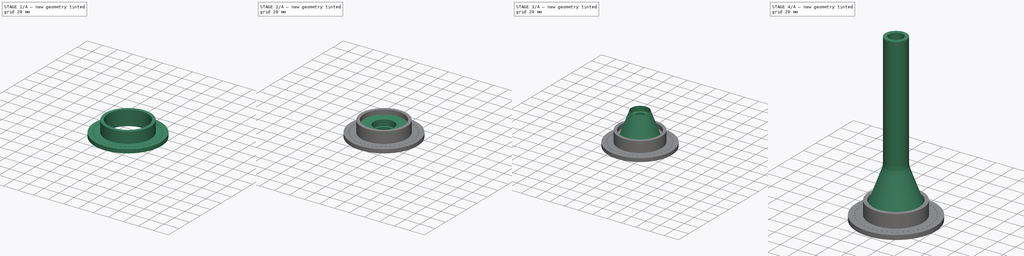
[diagram: build sequence overview — one tinted view per stage of 4, left to right]
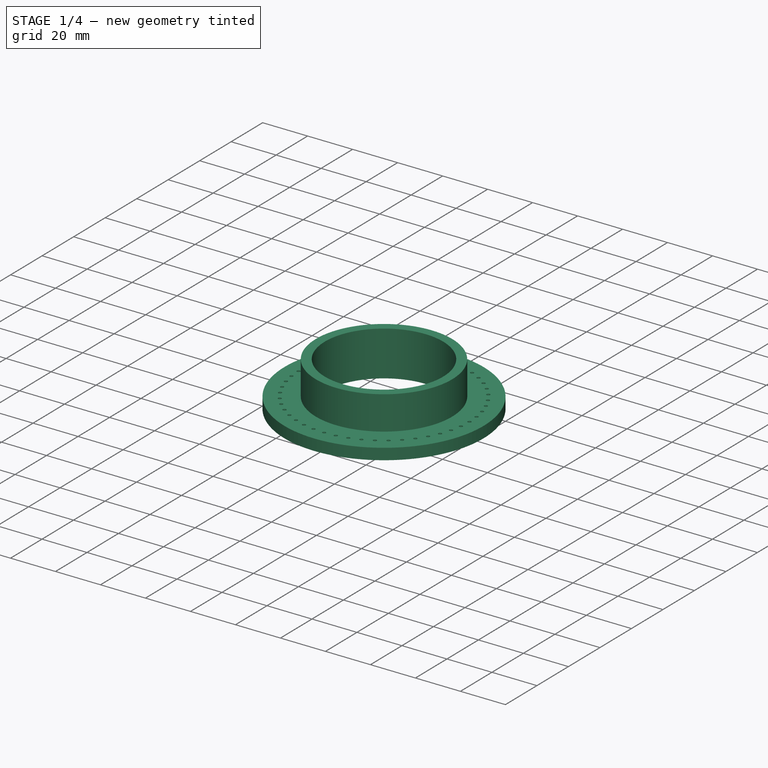
[diagram: stage 1 of 4 — iso view after this stage's code; geometry added in this stage tinted green]
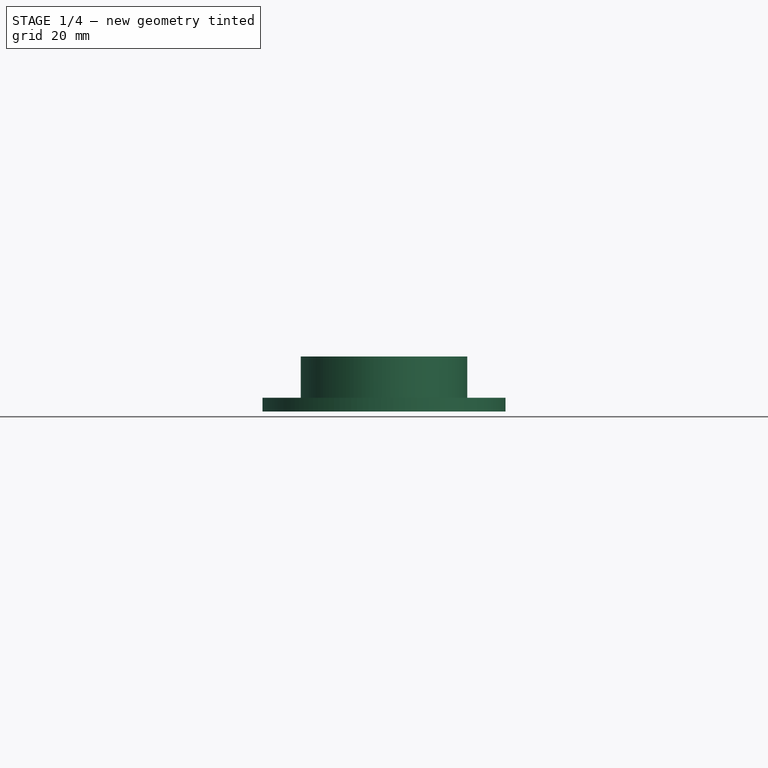
[diagram: stage 1 of 4 — front view after this stage's code; geometry added in this stage tinted green]
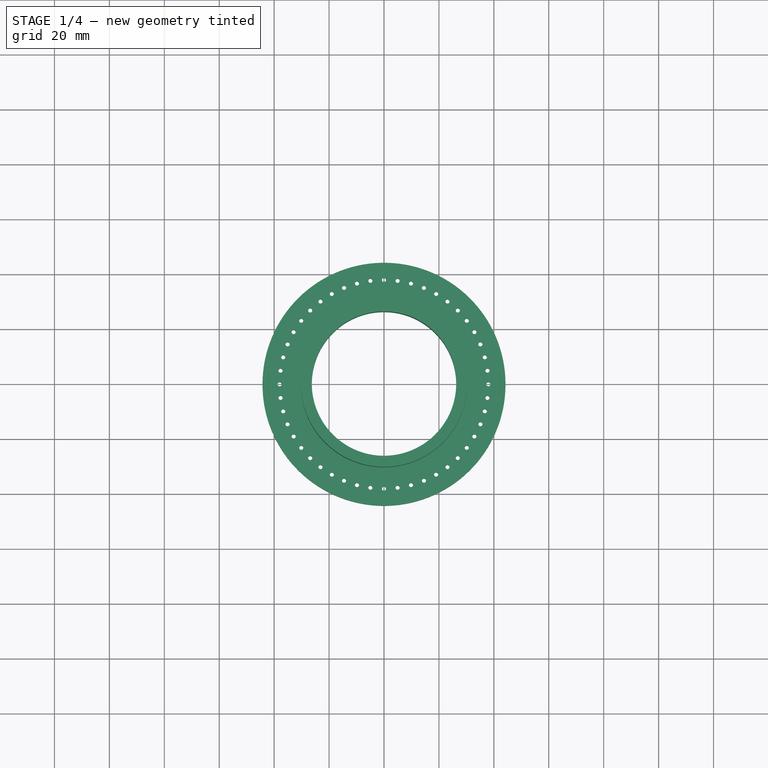
[diagram: stage 1 of 4 — top view after this stage's code; geometry added in this stage tinted green]
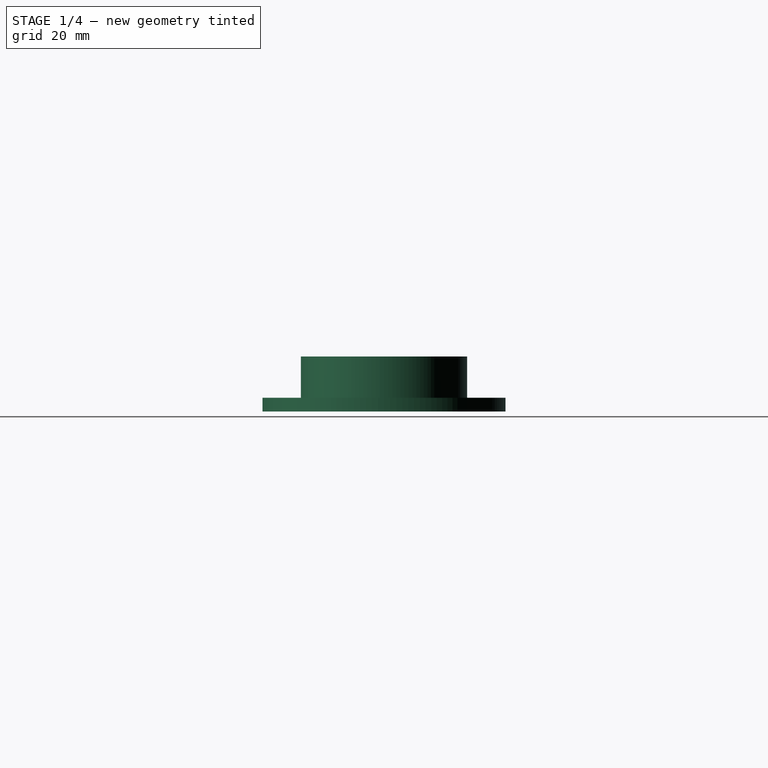
[diagram: stage 1 of 4 — right view after this stage's code; geometry added in this stage tinted green]
FCSTD DOCUMENT  (FreeCAD 0.17R13541 (Git))
Label: AirDryer
License: All rights reserved
LicenseURL: http://en.wikipedia.org/wiki/All_rights_reserved
objects: Sketcher::SketchObject×9, PartDesign::Body×5, PartDesign::Pad×5, PartDesign::Fillet×3, PartDesign::Revolution×2, PartDesign::Pocket×2, PartDesign::PolarPattern×2, App::Part×1
note: 37 computed .brp shape members not serialized (recipe doc carries the construction recipe); baked Part::Feature solids carry a one-line shape summary decoded from their .brp

FEATURE [PartDesign::Body] Body003
  Group = -> [Sketch003,Pad002]
  Origin = -> Origin004
  Tip = -> Pad002
FEATURE [Sketcher::SketchObject] Sketch004
  MapMode = 5
  Support = -> [XY_Plane005]
  sketch-geometry (2):
    g0: Circle CenterX=0 CenterY=0 CenterZ=0 NormalX=0 NormalY=0 NormalZ=1 AngleXU=0 Radius=26.3
    g1: Circle CenterX=0 CenterY=0 CenterZ=0 NormalX=0 NormalY=0 NormalZ=1 AngleXU=0 Radius=44.25
  constraints (4):
    c: Coincident(g0,g-1)
    c: Coincident(g1,g-1)
    c: Radius(g1) = 44.25
    c: Radius(g0) = 26.3
FEATURE [PartDesign::Pad] Pad003
  Length = 5
  Length2 = 100
  Profile = -> Sketch004
  Type = 0
FEATURE [Sketcher::SketchObject] Sketch005
  MapMode = 5
  Support = -> [XY_Plane005]
  sketch-geometry (2):
    g0: Circle CenterX=0 CenterY=0 CenterZ=0 NormalX=0 NormalY=0 NormalZ=1 AngleXU=0 Radius=26.3
    g1: Circle CenterX=0 CenterY=0 CenterZ=0 NormalX=0 NormalY=0 NormalZ=1 AngleXU=0 Radius=30.3
  constraints (4):
    c: Coincident(g0,g-1)
    c: Coincident(g1,g-1)
    c: Radius(g0) = 26.3
    c: Radius(g1) = 30.3
FEATURE [PartDesign::Pad] Pad004
  BaseFeature = -> Pad003
  Length = 20
  Length2 = 100
  Profile = -> Sketch005
  Type = 0
FEATURE [Sketcher::SketchObject] Sketch006
  MapMode = 5
  Placement = pos=(0,0,5) rot=(0,0,1;0rad)
  Support = -> [Pad004]
  sketch-geometry (1):
    g0: Circle CenterX=-38 CenterY=0 CenterZ=0 NormalX=0 NormalY=0 NormalZ=1 AngleXU=0 Radius=0.75
  constraints (3):
    c: PointOnObject(g0,g-1)
    c: DistanceX(g0,g-1) = 38
    c: Radius(g0) = 0.75
FEATURE [PartDesign::Pocket] Pocket001
  BaseFeature = -> Pad004
  Length = 10
  Length2 = 100
  Profile = -> Sketch006
  Type = 0
FEATURE [PartDesign::PolarPattern] PolarPattern001
  Angle = 360
  Axis = -> Z_Axis005
  BaseFeature = -> Pocket001
  Occurrences = 48
  Originals = -> [Pocket001]
FEATURE [PartDesign::Body] Body004
  Group = -> [Sketch004,Pad003,Sketch005,Pad004,Sketch006,Pocket001,PolarPattern001]
  Origin = -> Origin005
  Tip = -> PolarPattern001
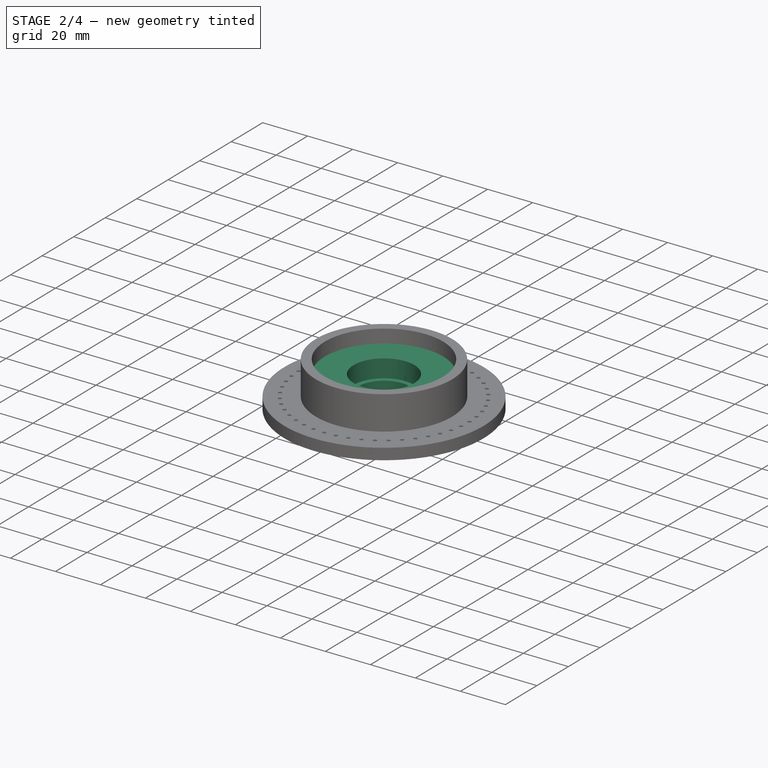
[diagram: stage 2 of 4 — iso view after this stage's code; geometry added in this stage tinted green]
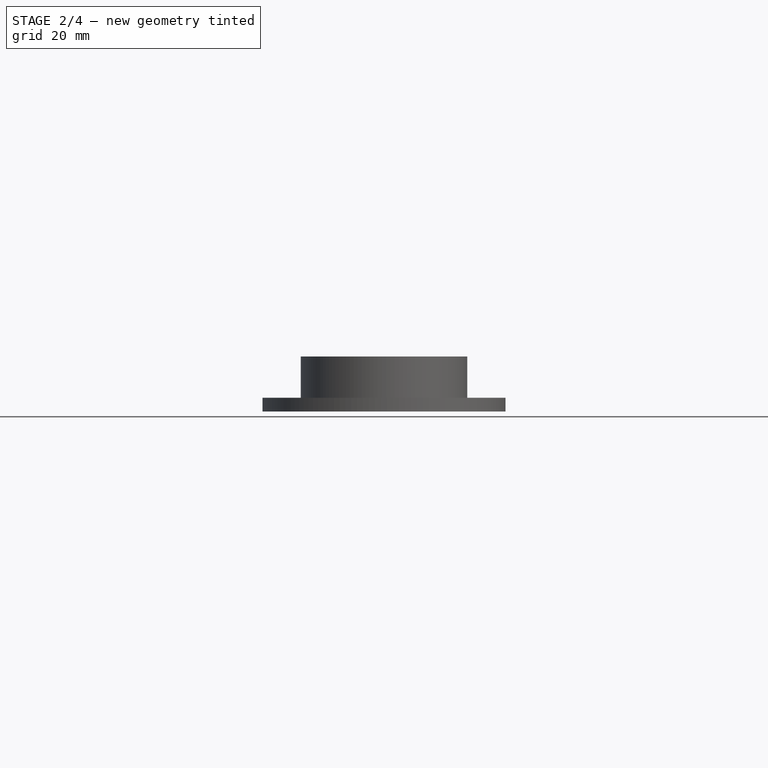
[diagram: stage 2 of 4 — front view after this stage's code; geometry added in this stage tinted green]
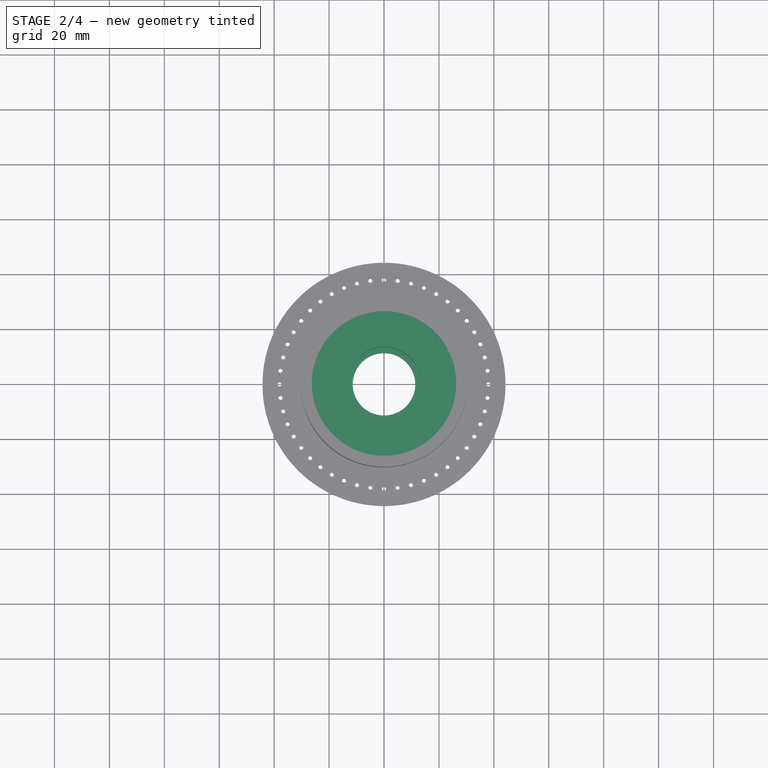
[diagram: stage 2 of 4 — top view after this stage's code; geometry added in this stage tinted green]
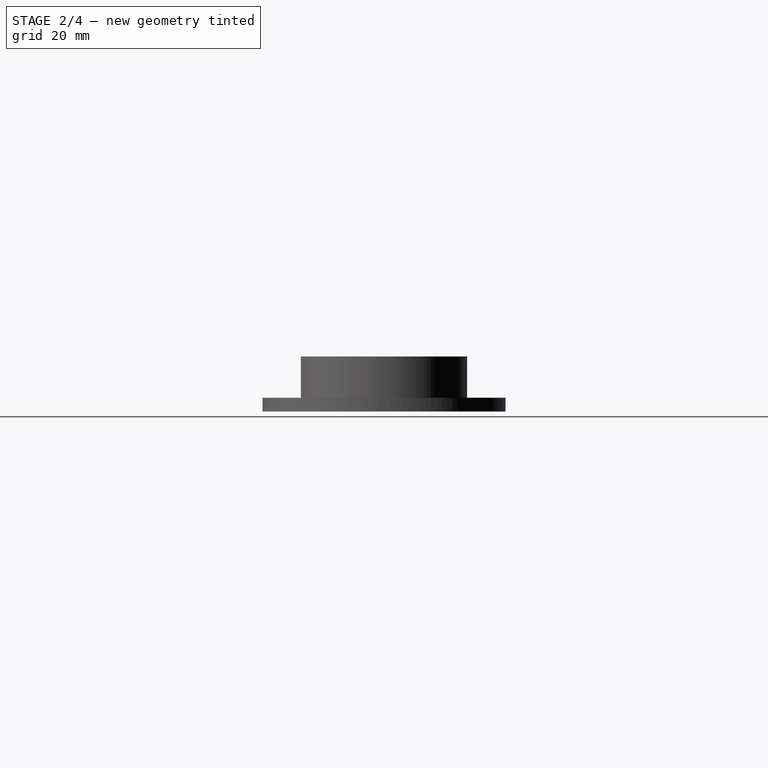
[diagram: stage 2 of 4 — right view after this stage's code; geometry added in this stage tinted green]
FEATURE [PartDesign::Body] Body001
  Group = -> [CopyCopySketch001,Revolution001,Fillet001,Fillet002]
  Origin = -> Origin002
  Tip = -> Fillet002
FEATURE [App::Part] Part
  Group = -> [Body,Body001]
  License = CC BY 3.0
  LicenseURL = http://creativecommons.org/licenses/by/3.0/
  Origin = -> Origin
FEATURE [Sketcher::SketchObject] Sketch
  MapMode = 5
  Support = -> [XY_Plane003]
  sketch-geometry (2):
    g0: Circle CenterX=0 CenterY=0 CenterZ=0 NormalX=0 NormalY=0 NormalZ=1 AngleXU=0 Radius=13.5
    g1: Circle CenterX=0 CenterY=0 CenterZ=0 NormalX=0 NormalY=0 NormalZ=1 AngleXU=0 Radius=26.5
  constraints (4):
    c: Coincident(g0,g-1)
    c: Coincident(g1,g-1)
    c: Radius(g0) = 13.5
    c: Radius(g1) = 26.5
FEATURE [PartDesign::Pad] Pad
  Length = 14
  Length2 = 100
  Profile = -> Sketch
  Type = 0
FEATURE [Sketcher::SketchObject] Sketch001
  MapMode = 5
  Placement = pos=(0,0,0) rot=(1,0,0;1.5708rad)
  Support = -> [XZ_Plane003]
  sketch-geometry (5):
    g0: Circle [constr] CenterX=0 CenterY=5 CenterZ=0 NormalX=0 NormalY=0 NormalZ=1 AngleXU=0 Radius=0.3
    g1: LineSegment StartX=-0.3 StartY=5 StartZ=0 EndX=0.3 EndY=5 EndZ=0
    g2: LineSegment StartX=0.3 StartY=5 StartZ=0 EndX=0.3 EndY=8 EndZ=0
    g3: LineSegment StartX=0.3 StartY=8 StartZ=0 EndX=-0.3 EndY=8 EndZ=0
    g4: LineSegment StartX=-0.3 StartY=8 StartZ=0 EndX=-0.3 EndY=5 EndZ=0
  constraints (15):
    c: PointOnObject(g0,g-2)
    c: Radius(g0) = 0.3
    c: DistanceY(g-1,g0) = 5
    c: Coincident(g1,g2)
    c: Coincident(g2,g3)
    c: Coincident(g3,g4)
    c: Coincident(g4,g1)
    c: Horizontal(g1)
    c: Horizontal(g3)
    c: Vertical(g2)
    c: Vertical(g4)
    c: PointOnObject(g1,g0)
    c: DistanceY(g2,g2) = 3
    c: PointOnObject(g1,g0)
    c: PointOnObject(g0,g1)
FEATURE [PartDesign::Pocket] Pocket
  BaseFeature = -> Pad
  Length = 50
  Length2 = 100
  Profile = -> Sketch001
  Type = 0
FEATURE [PartDesign::Body] Body002
  Group = -> [Sketch,Pad,Sketch001,Pocket,PolarPattern,Sketch002,Pad001]
  Origin = -> Origin003
  Tip = -> Pad001
FEATURE [Sketcher::SketchObject] Sketch003
  MapMode = 5
  Support = -> [XY_Plane004]
  sketch-geometry (2):
    g0: Circle CenterX=0 CenterY=0 CenterZ=0 NormalX=0 NormalY=0 NormalZ=1 AngleXU=0 Radius=13.5
    g1: Circle CenterX=0 CenterY=0 CenterZ=0 NormalX=0 NormalY=0 NormalZ=1 AngleXU=0 Radius=11.4
  constraints (4):
    c: Coincident(g0,g-1)
    c: Coincident(g1,g-1)
    c: Radius(g0) = 13.5
    c: Radius(g1) = 11.4
FEATURE [PartDesign::Pad] Pad002
  Length = 6
  Length2 = 100
  Profile = -> Sketch003
  Type = 0
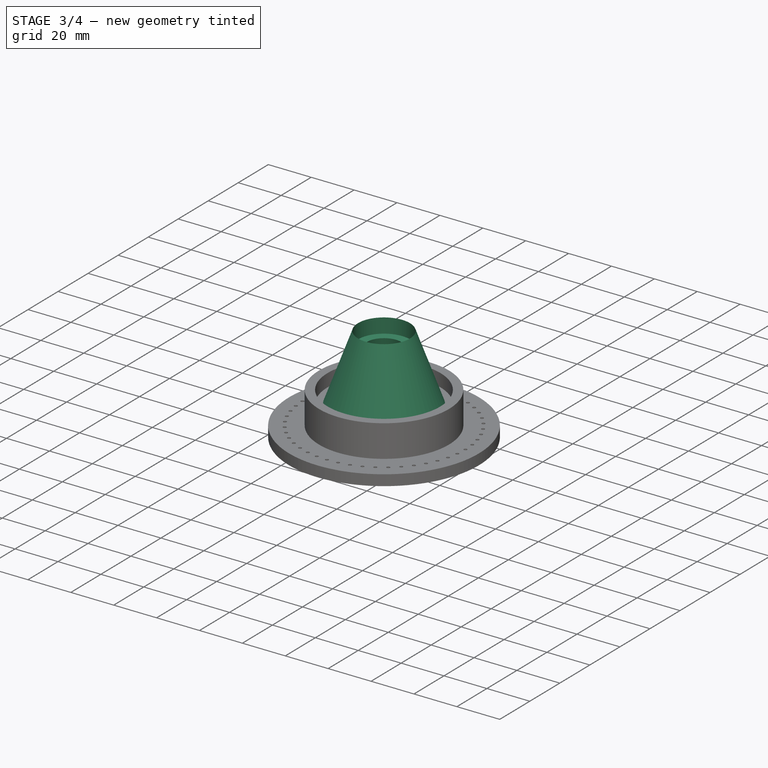
[diagram: stage 3 of 4 — iso view after this stage's code; geometry added in this stage tinted green]
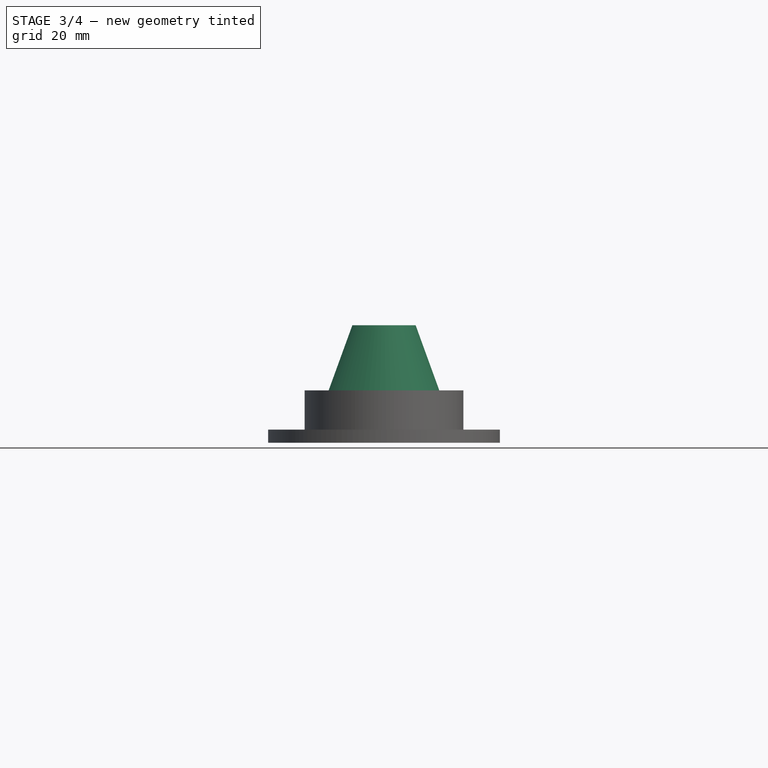
[diagram: stage 3 of 4 — front view after this stage's code; geometry added in this stage tinted green]
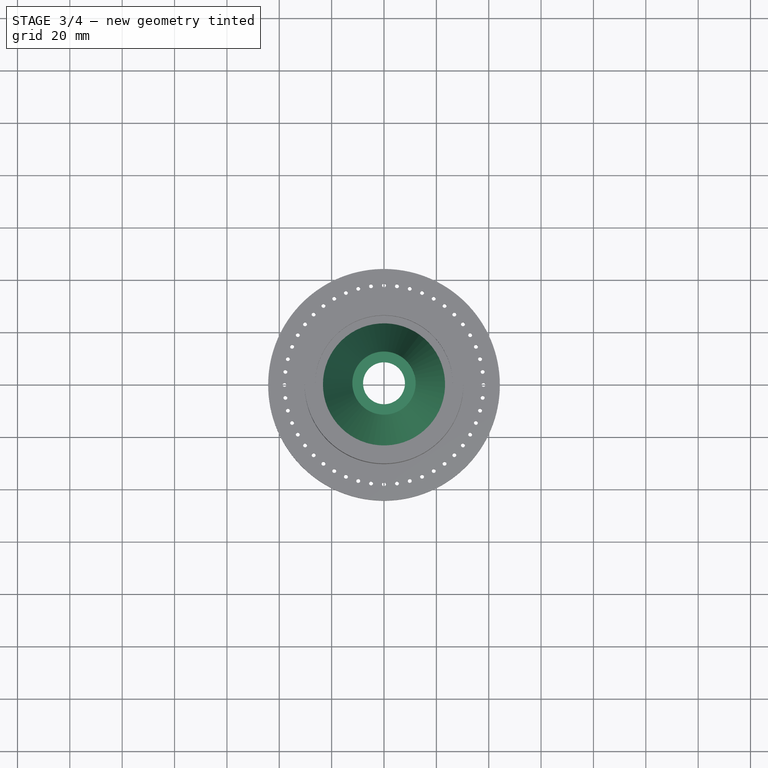
[diagram: stage 3 of 4 — top view after this stage's code; geometry added in this stage tinted green]
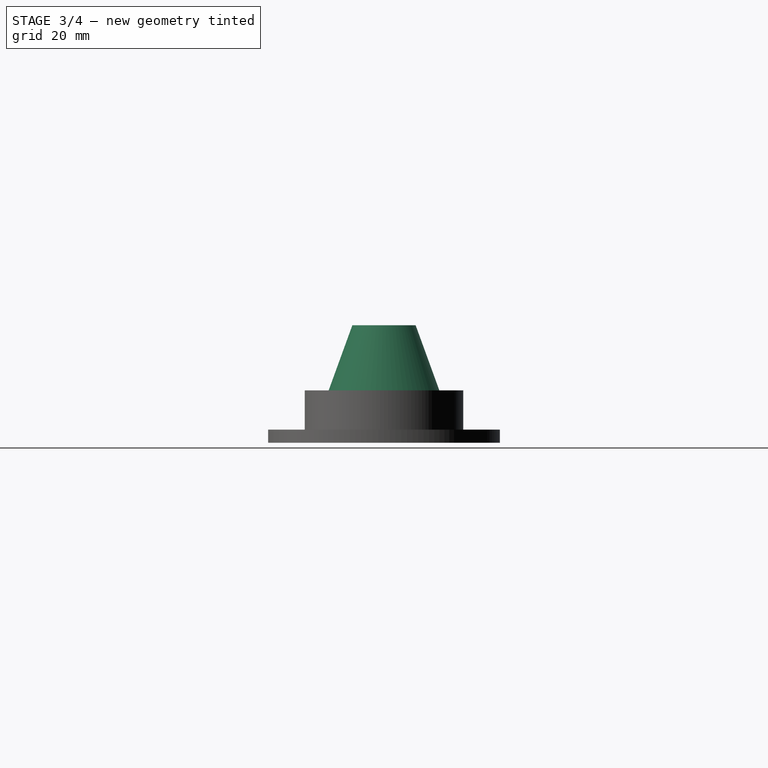
[diagram: stage 3 of 4 — right view after this stage's code; geometry added in this stage tinted green]
FEATURE [PartDesign::Body] Body
  Group = -> [CopyCopySketch,Revolution,Fillet]
  Origin = -> Origin001
  Tip = -> Fillet
FEATURE [Sketcher::SketchObject] CopyCopySketch001
  Placement = pos=(0,0,0) rot=(1,0,0;1.5708rad)
  sketch-geometry (7):
    g0: LineSegment StartX=-12.1 StartY=38 StartZ=0 EndX=-12.1 EndY=44.8384 EndZ=0
    g1: LineSegment StartX=-12.1 StartY=44.8384 StartZ=0 EndX=-26.6 EndY=5 EndZ=0
    g2: LineSegment StartX=-26.6 StartY=5 StartZ=0 EndX=-26.6 EndY=0 EndZ=0
    g3: LineSegment StartX=-26.6 StartY=0 StartZ=0 EndX=-16.6 EndY=0 EndZ=0
    g4: LineSegment StartX=-16.6 StartY=0 StartZ=0 EndX=-16.6 EndY=5 EndZ=0
    g5: LineSegment StartX=-16.6 StartY=5 StartZ=0 EndX=-8 EndY=38 EndZ=0
    g6: LineSegment StartX=-12.1 StartY=38 StartZ=0 EndX=-8 EndY=38 EndZ=0
  constraints (21):
    c: Vertical(g0)
    c: Coincident(g0,g1)
    c: Coincident(g1,g2)
    c: PointOnObject(g2,g-1)
    c: Vertical(g2)
    c: Coincident(g2,g3)
    c: Coincident(g3,g4)
    c: Vertical(g4)
    c: Coincident(g4,g5)
    c: PointOnObject(g3,g-1)
    c: Equal(g2,g4)
    c: DistanceX(g3,g3) = 10
    c: DistanceX(g0,g5) = 4.1
    c: DistanceX(g3,g-1) = 16.6
    c: DistanceX(g5,g-1) = 8
    c: Horizontal(g6)
    c: DistanceY(g-1,g6) = 38
    c: DistanceY(g2,g1) = 5
    c: Angle(g2,g1) = 2.79253
    c: Coincident(g0,g6)
    c: Coincident(g5,g6)
FEATURE [PartDesign::Revolution] Revolution001
  Angle = 360
  Axis = (0,0,1)
  Base = (0,0,0)
  Placement = pos=(0,0,0) rot=(1,0,0;1.5708rad)
  Profile = -> CopyCopySketch001
  ReferenceAxis = -> Z_Axis002
FEATURE [PartDesign::PolarPattern] PolarPattern
  Angle = 360
  Axis = -> Z_Axis003
  BaseFeature = -> Pocket
  Occurrences = 36
  Originals = -> [Pocket]
FEATURE [Sketcher::SketchObject] Sketch002
  MapMode = 5
  Placement = pos=(0,0,14) rot=(0,0,1;0rad)
  Support = -> [PolarPattern]
  sketch-geometry (2):
    g0: Circle CenterX=0 CenterY=0 CenterZ=0 NormalX=0 NormalY=0 NormalZ=1 AngleXU=0 Radius=16.5
    g1: Circle CenterX=0 CenterY=0 CenterZ=0 NormalX=0 NormalY=0 NormalZ=1 AngleXU=0 Radius=13.5
  constraints (4):
    c: Coincident(g0,g-1)
    c: Radius(g0) = 16.5
    c: Coincident(g1,g-1)
    c: Radius(g1) = 13.5
FEATURE [PartDesign::Pad] Pad001
  BaseFeature = -> PolarPattern
  Length = 8
  Length2 = 100
  Midplane = true
  Profile = -> Sketch002
  Type = 0
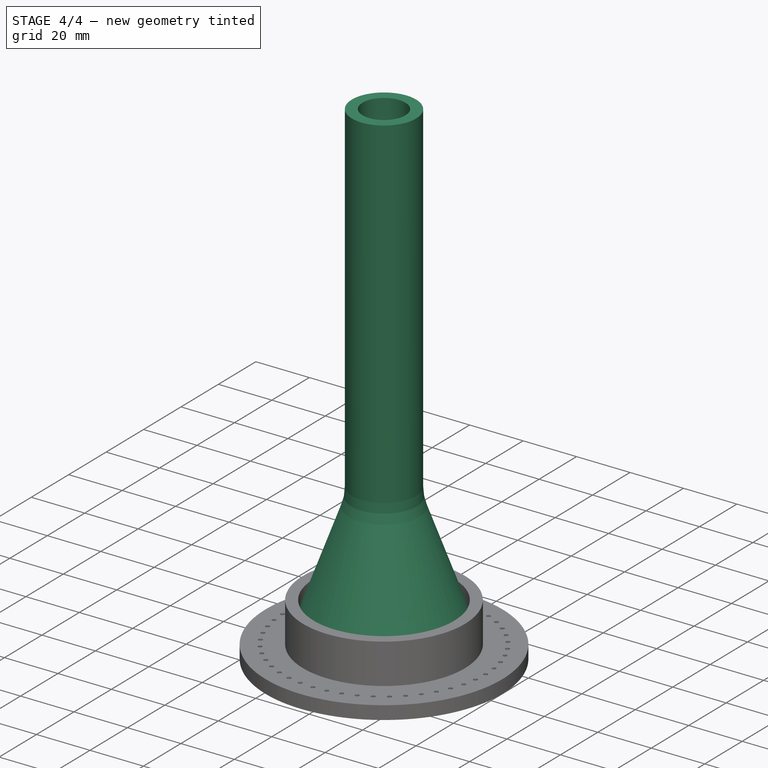
[diagram: stage 4 of 4 — iso view after this stage's code; geometry added in this stage tinted green]
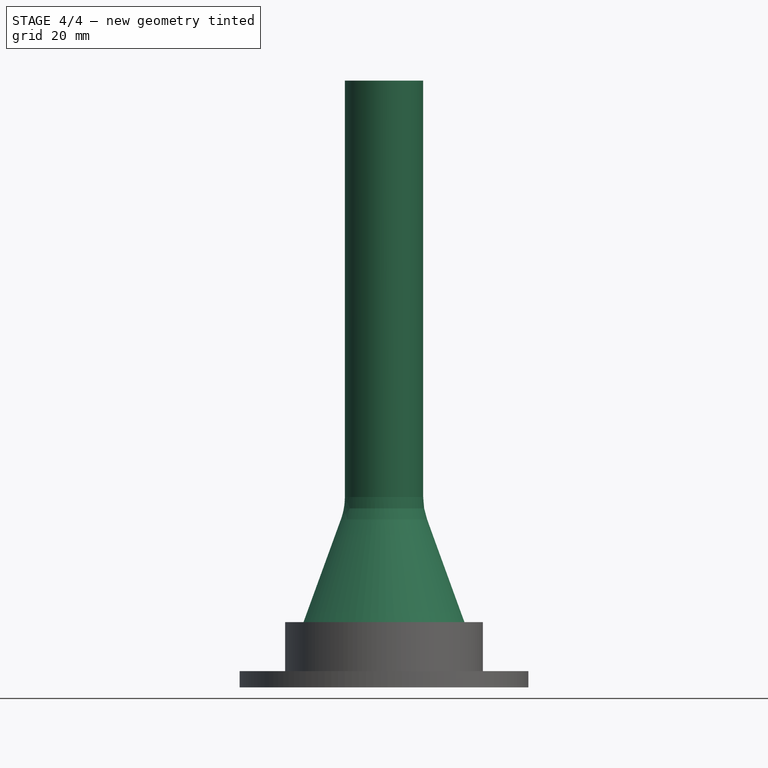
[diagram: stage 4 of 4 — front view after this stage's code; geometry added in this stage tinted green]
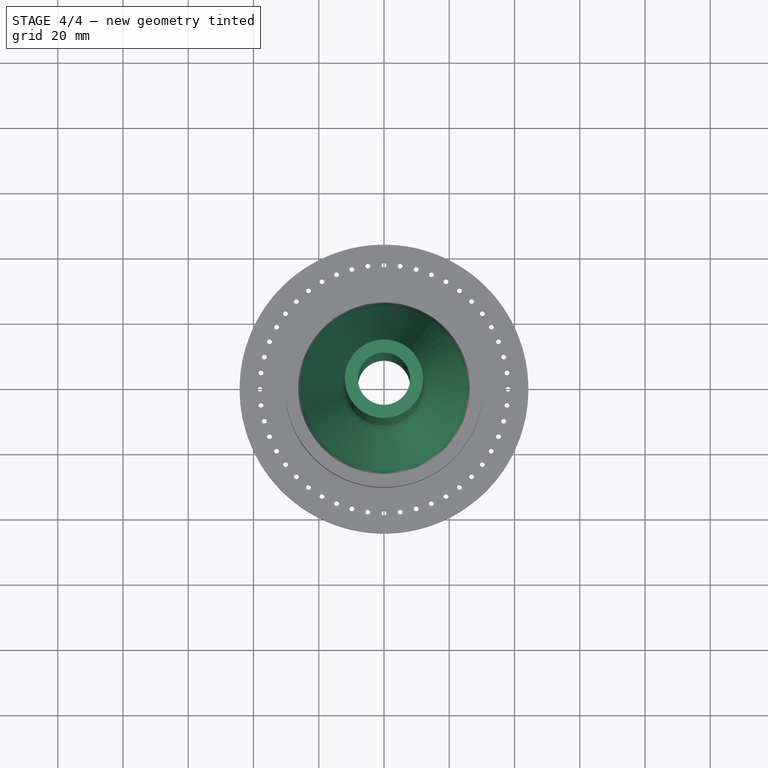
[diagram: stage 4 of 4 — top view after this stage's code; geometry added in this stage tinted green]
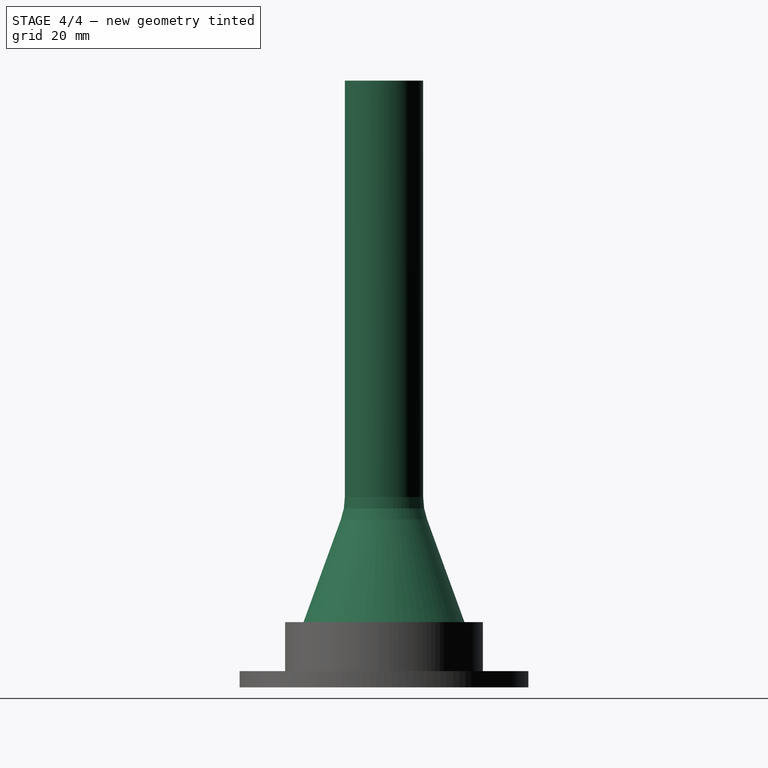
[diagram: stage 4 of 4 — right view after this stage's code; geometry added in this stage tinted green]
FEATURE [Sketcher::SketchObject] CopyCopySketch
  Placement = pos=(0,0,0) rot=(1,0,0;1.5708rad)
  sketch-geometry (8):
    g0: LineSegment StartX=-8 StartY=46.1921 StartZ=0 EndX=-8 EndY=186 EndZ=0
    g1: LineSegment StartX=-12 StartY=186 StartZ=0 EndX=-12 EndY=54.8384 EndZ=0
    g2: LineSegment StartX=-12 StartY=54.8384 StartZ=0 EndX=-26.5 EndY=15 EndZ=0
    g3: LineSegment StartX=-26.5 StartY=15 StartZ=0 EndX=-26.5 EndY=0 EndZ=0
    g4: LineSegment StartX=-26.5 StartY=0 StartZ=0 EndX=-13.5 EndY=0 EndZ=0
    g5: LineSegment StartX=-13.5 StartY=0 StartZ=0 EndX=-13.5 EndY=15 EndZ=0
    g6: LineSegment StartX=-13.5 StartY=15 StartZ=0 EndX=-8 EndY=46.1921 EndZ=0
    g7: LineSegment StartX=-12 StartY=186 StartZ=0 EndX=-8 EndY=186 EndZ=0
  constraints (24):
    c: Vertical(g0)
    c: Vertical(g1)
    c: Coincident(g1,g2)
    c: Coincident(g2,g3)
    c: PointOnObject(g3,g-1)
    c: Vertical(g3)
    c: Coincident(g3,g4)
    c: Coincident(g4,g5)
    c: Vertical(g5)
    c: Coincident(g5,g6)
    c: Coincident(g6,g0)
    c: PointOnObject(g4,g-1)
    c: Equal(g3,g5)
    c: DistanceX(g4,g4) = 13
    c: DistanceX(g1,g0) = 4
    c: Angle(g5,g6) = 2.96706
    c: DistanceX(g4,g-1) = 13.5
    c: DistanceX(g0,g-1) = 8
    c: Coincident(g7,g0)
    c: Horizontal(g7)
    c: DistanceY(g-1,g0) = 186
    c: DistanceY(g3,g2) = 15
    c: Angle(g3,g2) = 2.79253
    c: Coincident(g1,g7)
FEATURE [PartDesign::Revolution] Revolution
  Angle = 360
  Axis = (0,0,1)
  Base = (0,0,0)
  Placement = pos=(0,0,0) rot=(1,0,0;1.5708rad)
  Profile = -> CopyCopySketch
  ReferenceAxis = -> CopyCopySketch [V_Axis]
FEATURE [PartDesign::Fillet] Fillet
  Base = -> Revolution [Edge2,Edge4,Edge11,Edge9]
  BaseFeature = -> Revolution
  Placement = pos=(0,0,0) rot=(1,0,0;1.5708rad)
  Radius = 20
FEATURE [PartDesign::Fillet] Fillet001
  Base = -> Revolution001 [Edge4,Edge9]
  BaseFeature = -> Revolution001
  Placement = pos=(0,0,0) rot=(1,0,0;1.5708rad)
  Radius = 20
FEATURE [PartDesign::Fillet] Fillet002
  Base = -> Fillet001 [Edge3]
  BaseFeature = -> Fillet001
  Placement = pos=(0,0,0) rot=(1,0,0;1.5708rad)
  Radius = 0.3
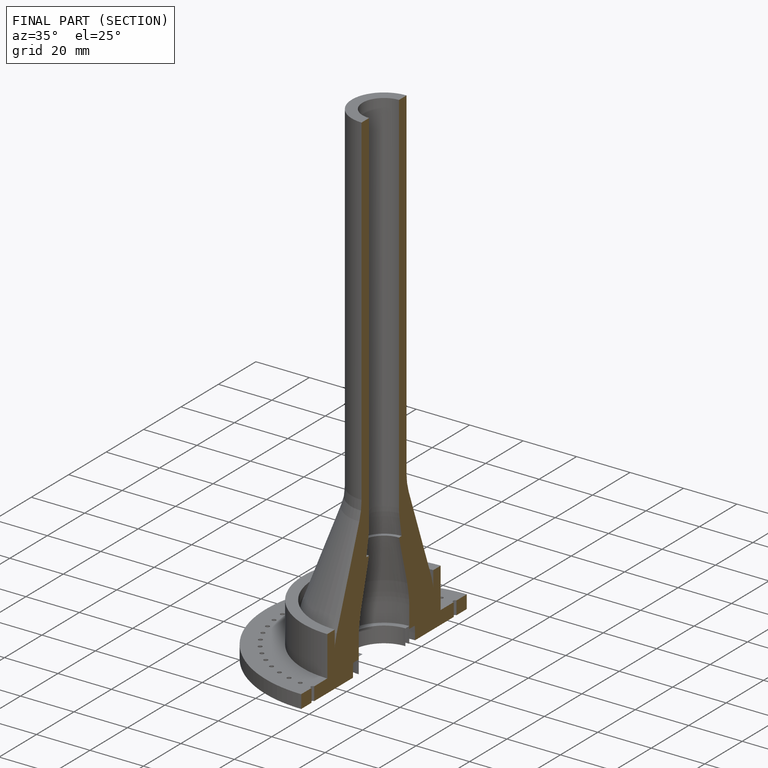
[diagram: finished part — half-section view (interior)]
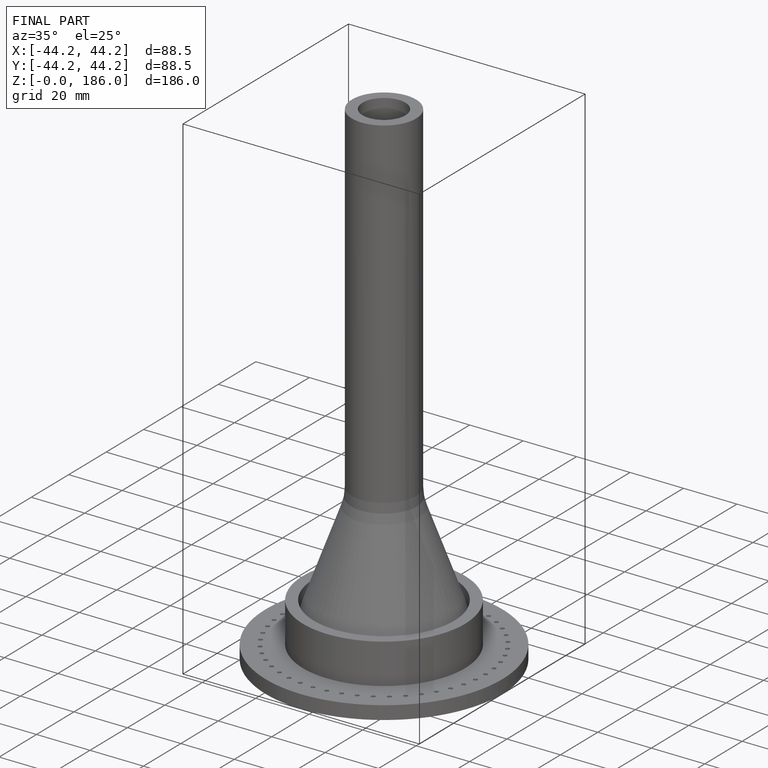
[diagram: finished part — iso view with bounding-box wireframe]
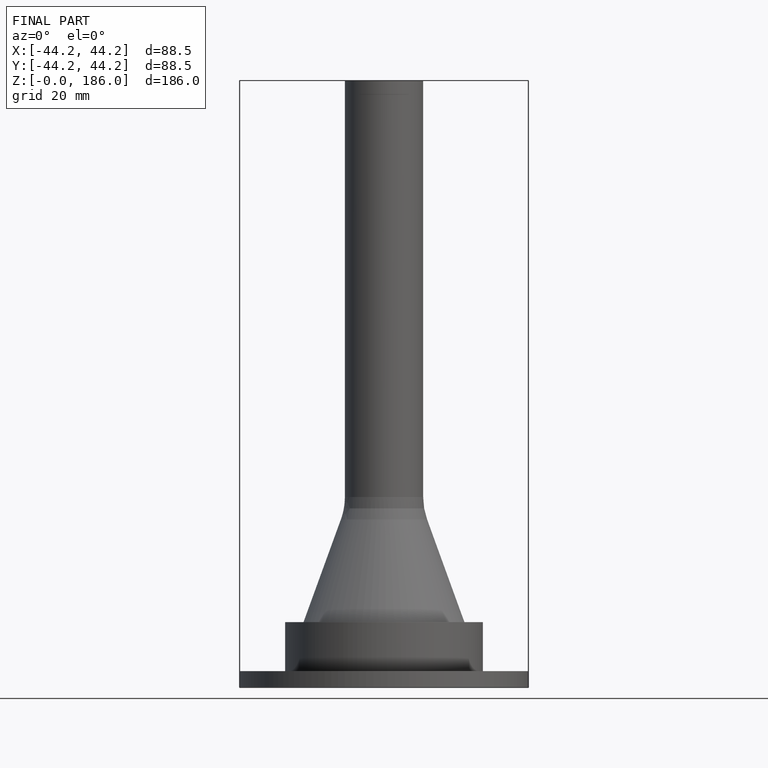
[diagram: finished part — front view with bounding-box wireframe]
